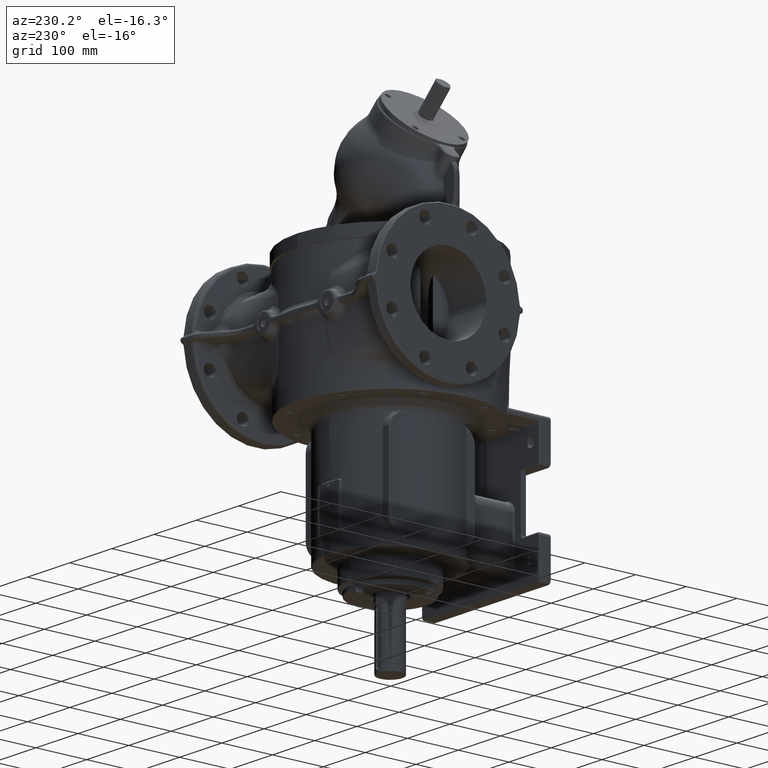
[diagram: clean part render]
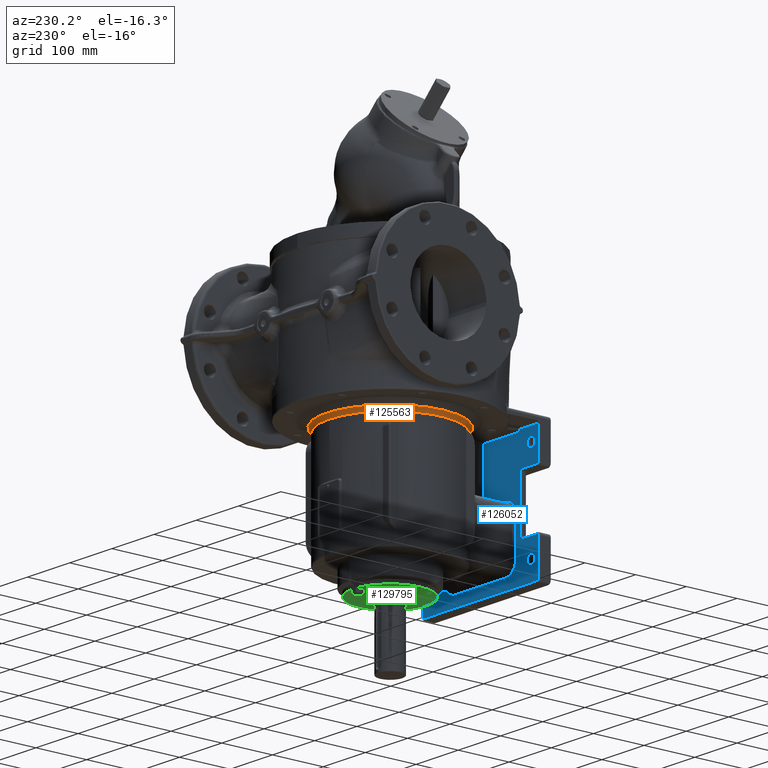
[diagram: same view with three faces highlighted in distinct colors, each labeled with its STEP entity id]
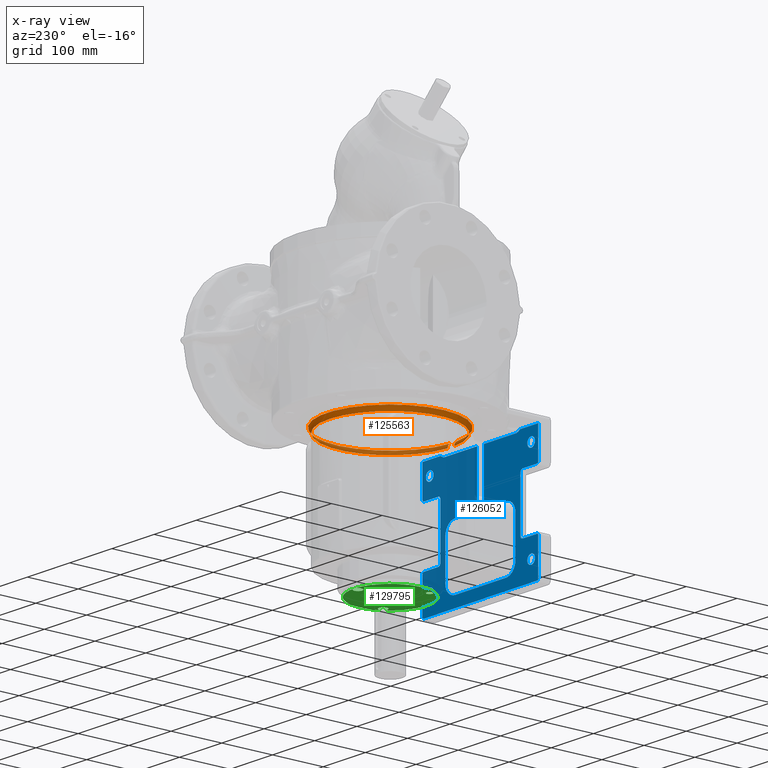
[diagram: x-ray of the same camera — body ghosted, the three highlighted faces saturated]
A machine part, auxiliary view with three faces highlighted in distinct colors.
The next image is the same camera in x-ray (body ghosted, the three faces saturated) — at least one of them is partly hidden behind the body in this view.
Their STEP definitions:

[orange] entity #125563 — the highlighted toroidal blend (fillet) surface has major radius 130 mm and minor (blend) radius 10 mm.
#41489=CARTESIAN_POINT('',(7.905138339962E0,-1.237497847212E2,
-2.966025403897E1));
#41518=CARTESIAN_POINT('',(7.804878048862E0,-1.187459138298E2,
-3.832050807569E1));
#41519=CARTESIAN_POINT('',(7.804878047249E0,-1.187459138581E2,
-3.819588889694E1));
#41520=CARTESIAN_POINT('',(7.804974144647E0,-1.187505769993E2,
-3.794664927612E1));
#41521=CARTESIAN_POINT('',(7.805406310083E0,-1.187715515571E2,
-3.757331164305E1));
#41522=CARTESIAN_POINT('',(7.806125704940E0,-1.188064778220E2,
-3.720100824532E1));
#41523=CARTESIAN_POINT('',(7.807130975604E0,-1.188553061686E2,
-3.683027236160E1));
#41524=CARTESIAN_POINT('',(7.808420267389E0,-1.189179699964E2,
-3.646161107183E1));
#41525=CARTESIAN_POINT('',(7.809991182568E0,-1.189943819244E2,
-3.609554345889E1));
#41526=CARTESIAN_POINT('',(7.811840818256E0,-1.190844364563E2,
-3.573257796155E1));
#41527=CARTESIAN_POINT('',(7.813965758346E0,-1.191880087199E2,
-3.537322182887E1));
#41528=CARTESIAN_POINT('',(7.816362091564E0,-1.193049552912E2,
-3.501797625866E1));
#41529=CARTESIAN_POINT('',(7.819025419473E0,-1.194351140829E2,
-3.466733730117E1));
#41530=CARTESIAN_POINT('',(7.821950870715E0,-1.195783046685E2,
-3.432179460794E1));
#41531=CARTESIAN_POINT('',(7.825133114593E0,-1.197343284661E2,
-3.398183095258E1));
#41532=CARTESIAN_POINT('',(7.828566376483E0,-1.199029690035E2,
-3.364792151348E1));
#41533=CARTESIAN_POINT('',(7.832244454624E0,-1.200839922106E2,
-3.332053317775E1));
#41534=CARTESIAN_POINT('',(7.836160744991E0,-1.202771470857E2,
-3.300012334008E1));
#41535=CARTESIAN_POINT('',(7.840308251340E0,-1.204821656113E2,
-3.268714011921E1));
#41536=CARTESIAN_POINT('',(7.844679598522E0,-1.206987628048E2,
-3.238202202349E1));
#41537=CARTESIAN_POINT('',(7.849267060918E0,-1.209266375058E2,
-3.208519662492E1));
#41538=CARTESIAN_POINT('',(7.854062580797E0,-1.211654726468E2,
-3.179708015615E1));
#41539=CARTESIAN_POINT('',(7.859057790814E0,-1.214149357539E2,
-3.151807681562E1));
#41540=CARTESIAN_POINT('',(7.864244034077E0,-1.216746792300E2,
-3.124857834463E1));
#41541=CARTESIAN_POINT('',(7.869612390946E0,-1.219443412708E2,
-3.098896305862E1));
#41542=CARTESIAN_POINT('',(7.875153689429E0,-1.222235450992E2,
-3.073959636805E1));
#41543=CARTESIAN_POINT('',(7.880858557768E0,-1.225119028044E2,
-3.050082754297E1));
#41544=CARTESIAN_POINT('',(7.886717382646E0,-1.228090077085E2,
-3.027299553799E1));
#41545=CARTESIAN_POINT('',(7.892720438242E0,-1.231144527063E2,
-3.005641526664E1));
#41546=CARTESIAN_POINT('',(7.898857859639E0,-1.234277992889E2,
-2.985139982704E1));
#41547=CARTESIAN_POINT('',(7.903032056922E0,-1.236416762904E2,
-2.972262246797E1));
#41548=CARTESIAN_POINT('',(7.905138339962E0,-1.237497847212E2,
-2.966025403897E1));
#41550=CARTESIAN_POINT('',(0.E0,1.E0,-2.966025403784E1));
#41551=DIRECTION('',(0.E0,0.E0,1.E0));
#41552=DIRECTION('',(6.324110671937E-2,-9.979982777645E-1,0.E0));
#41553=AXIS2_PLACEMENT_3D('',#41550,#41551,#41552);
#41555=CARTESIAN_POINT('',(-7.905138339962E0,-1.237497847212E2,
-2.966025403897E1));
#41556=CARTESIAN_POINT('',(-7.903032056921E0,-1.236416762902E2,
-2.972262246805E1));
#41557=CARTESIAN_POINT('',(-7.898857859631E0,-1.234277992885E2,
-2.985139982725E1));
#41558=CARTESIAN_POINT('',(-7.892720438237E0,-1.231144527060E2,
-3.005641526682E1));
#41559=CARTESIAN_POINT('',(-7.886717382641E0,-1.228090077083E2,
-3.027299553815E1));
#41560=CARTESIAN_POINT('',(-7.880858557764E0,-1.225119028041E2,
-3.050082754315E1));
#41561=CARTESIAN_POINT('',(-7.875153689425E0,-1.222235450990E2,
-3.073959636822E1));
#41562=CARTESIAN_POINT('',(-7.869612390942E0,-1.219443412707E2,
-3.098896305880E1));
#41563=CARTESIAN_POINT('',(-7.864244034074E0,-1.216746792298E2,
-3.124857834480E1));
#41564=CARTESIAN_POINT('',(-7.859057790811E0,-1.214149357537E2,
-3.151807681579E1));
#41565=CARTESIAN_POINT('',(-7.854062580795E0,-1.211654726466E2,
-3.179708015632E1));
#41566=CARTESIAN_POINT('',(-7.849267060915E0,-1.209266375057E2,
-3.208519662508E1));
#41567=CARTESIAN_POINT('',(-7.844679598520E0,-1.206987628047E2,
-3.238202202364E1));
#41568=CARTESIAN_POINT('',(-7.840308251338E0,-1.204821656112E2,
-3.268714011935E1));
#41569=CARTESIAN_POINT('',(-7.836160744989E0,-1.202771470856E2,
-3.300012334022E1));
#41570=CARTESIAN_POINT('',(-7.832244454622E0,-1.200839922105E2,
-3.332053317788E1));
#41571=CARTESIAN_POINT('',(-7.828566376482E0,-1.199029690034E2,
-3.364792151361E1));
#41572=CARTESIAN_POINT('',(-7.825133114592E0,-1.197343284660E2,
-3.398183095269E1));
#41573=CARTESIAN_POINT('',(-7.821950870714E0,-1.195783046685E2,
-3.432179460805E1));
#41574=CARTESIAN_POINT('',(-7.819025419473E0,-1.194351140829E2,
-3.466733730127E1));
#41575=CARTESIAN_POINT('',(-7.816362091563E0,-1.193049552912E2,
-3.501797625875E1));
#41576=CARTESIAN_POINT('',(-7.813965758345E0,-1.191880087199E2,
-3.537322182895E1));
#41577=CARTESIAN_POINT('',(-7.811840818256E0,-1.190844364562E2,
-3.573257796161E1));
#41578=CARTESIAN_POINT('',(-7.809991182567E0,-1.189943819244E2,
-3.609554345894E1));
#41579=CARTESIAN_POINT('',(-7.808420267389E0,-1.189179699963E2,
-3.646161107187E1));
#41580=CARTESIAN_POINT('',(-7.807130975604E0,-1.188553061686E2,
-3.683027236162E1));
#41581=CARTESIAN_POINT('',(-7.806125704940E0,-1.188064778220E2,
-3.720100824534E1));
#41582=CARTESIAN_POINT('',(-7.805406310083E0,-1.187715515571E2,
-3.757331164304E1));
#41583=CARTESIAN_POINT('',(-7.804974144647E0,-1.187505769993E2,
-3.794664927610E1));
#41584=CARTESIAN_POINT('',(-7.804878047249E0,-1.187459138581E2,
-3.819588889694E1));
#41585=CARTESIAN_POINT('',(-7.804878048862E0,-1.187459138298E2,
-3.832050807569E1));
#42973=CARTESIAN_POINT('',(0.E0,1.E0,-3.832050807569E1));
#42974=DIRECTION('',(0.E0,0.E0,-1.E0));
#42975=DIRECTION('',(0.E0,1.E0,0.E0));
#42976=AXIS2_PLACEMENT_3D('',#42973,#42974,#42975);
#43351=CARTESIAN_POINT('',(0.E0,1.E0,-3.832050807569E1));
#43352=DIRECTION('',(0.E0,0.E0,1.E0));
#43353=DIRECTION('',(0.E0,1.E0,0.E0));
#43354=AXIS2_PLACEMENT_3D('',#43351,#43352,#43353);
#65960=VERTEX_POINT('',#41489);
#65963=VERTEX_POINT('',#41518);
#65965=VERTEX_POINT('',#41555);
#65966=VERTEX_POINT('',#41585);
#66216=CARTESIAN_POINT('',(0.E0,1.21E2,-3.832050807569E1));
#66217=VERTEX_POINT('',#66216);
#125548=CARTESIAN_POINT('',(0.E0,1.E0,-3.832050807569E1));
#125549=DIRECTION('',(0.E0,0.E0,-1.E0));
#125550=DIRECTION('',(0.E0,1.E0,0.E0));
#125551=AXIS2_PLACEMENT_3D('',#125548,#125549,#125550);
#125552=TOROIDAL_SURFACE('',#125551,1.3E2,1.E1);
#125553=ORIENTED_EDGE('',*,*,#125538,.T.);
#125554=ORIENTED_EDGE('',*,*,#125358,.T.);
#125556=ORIENTED_EDGE('',*,*,#125555,.T.);
#125558=ORIENTED_EDGE('',*,*,#125557,.F.);
#125560=ORIENTED_EDGE('',*,*,#125559,.T.);
#125561=EDGE_LOOP('',(#125553,#125554,#125556,#125558,#125560));
#125562=FACE_OUTER_BOUND('',#125561,.F.);
#125563=ADVANCED_FACE('',(#125562),#125552,.F.);
#41549=B_SPLINE_CURVE_WITH_KNOTS('',3,(#41518,#41519,#41520,#41521,#41522,
#41523,#41524,#41525,#41526,#41527,#41528,#41529,#41530,#41531,#41532,#41533,
#41534,#41535,#41536,#41537,#41538,#41539,#41540,#41541,#41542,#41543,#41544,
#41545,#41546,#41547,#41548),.UNSPECIFIED.,.F.,.F.,(4,1,1,1,1,1,1,1,1,1,1,1,1,1,
1,1,1,1,1,1,1,1,1,1,1,1,1,1,4),(0.E0,3.571428571429E-2,7.142857142857E-2,
1.071428571429E-1,1.428571428571E-1,1.785714285714E-1,2.142857142857E-1,2.5E-1,
2.857142857143E-1,3.214285714286E-1,3.571428571429E-1,3.928571428571E-1,
4.285714285714E-1,4.642857142857E-1,5.E-1,5.357142857143E-1,5.714285714286E-1,
6.071428571429E-1,6.428571428571E-1,6.785714285714E-1,7.142857142857E-1,7.5E-1,
7.857142857143E-1,8.214285714286E-1,8.571428571429E-1,8.928571428571E-1,
9.285714285714E-1,9.642857142857E-1,1.E0),.UNSPECIFIED.);
#41554=CIRCLE('',#41553,1.25E2);
#41586=B_SPLINE_CURVE_WITH_KNOTS('',3,(#41555,#41556,#41557,#41558,#41559,
#41560,#41561,#41562,#41563,#41564,#41565,#41566,#41567,#41568,#41569,#41570,
#41571,#41572,#41573,#41574,#41575,#41576,#41577,#41578,#41579,#41580,#41581,
#41582,#41583,#41584,#41585),.UNSPECIFIED.,.F.,.F.,(4,1,1,1,1,1,1,1,1,1,1,1,1,1,
1,1,1,1,1,1,1,1,1,1,1,1,1,1,4),(0.E0,3.571428571429E-2,7.142857142857E-2,
1.071428571429E-1,1.428571428571E-1,1.785714285714E-1,2.142857142857E-1,2.5E-1,
2.857142857143E-1,3.214285714286E-1,3.571428571429E-1,3.928571428571E-1,
4.285714285714E-1,4.642857142857E-1,5.E-1,5.357142857143E-1,5.714285714286E-1,
6.071428571429E-1,6.428571428571E-1,6.785714285714E-1,7.142857142857E-1,7.5E-1,
7.857142857143E-1,8.214285714286E-1,8.571428571429E-1,8.928571428571E-1,
9.285714285714E-1,9.642857142857E-1,1.E0),.UNSPECIFIED.);
#42977=CIRCLE('',#42976,1.2E2);
#43355=CIRCLE('',#43354,1.2E2);
#125358=EDGE_CURVE('',#65960,#65965,#41554,.T.);
#125538=EDGE_CURVE('',#65963,#65960,#41549,.T.);
#125555=EDGE_CURVE('',#65965,#65966,#41586,.T.);
#125557=EDGE_CURVE('',#66217,#65966,#43355,.T.);
#125559=EDGE_CURVE('',#66217,#65963,#42977,.T.);

[blue] entity #126052 — the highlighted planar face has unit normal (0, -1, 0).
#41774=DIRECTION('',(-1.E0,-2.991250063592E-10,-3.112637636795E-8));
#41775=VECTOR('',#41774,4.289970117279E1);
#41776=CARTESIAN_POINT('',(-9.410029882721E1,-1.769999999872E2,
-1.989999866469E1));
#41777=LINE('',#41776,#41775);
#41778=DIRECTION('',(0.E0,0.E0,1.E0));
#41779=VECTOR('',#41778,6.01E1);
#41780=CARTESIAN_POINT('',(-1.37E2,-1.77E2,-8.E1));
#41781=LINE('',#41780,#41779);
#41782=CARTESIAN_POINT('',(-1.34E2,-1.77E2,-8.E1));
#41783=DIRECTION('',(0.E0,1.E0,0.E0));
#41784=DIRECTION('',(0.E0,0.E0,-1.E0));
#41785=AXIS2_PLACEMENT_3D('',#41782,#41783,#41784);
#41787=DIRECTION('',(-1.E0,0.E0,0.E0));
#41788=VECTOR('',#41787,3.35E1);
#41789=CARTESIAN_POINT('',(-1.005E2,-1.77E2,-8.3E1));
#41790=LINE('',#41789,#41788);
#41791=CARTESIAN_POINT('',(-1.005E2,-1.77E2,-8.9E1));
#41792=DIRECTION('',(0.E0,-1.E0,0.E0));
#41793=DIRECTION('',(1.E0,0.E0,0.E0));
#41794=AXIS2_PLACEMENT_3D('',#41791,#41792,#41793);
#41796=DIRECTION('',(0.E0,0.E0,1.E0));
#41797=VECTOR('',#41796,9.9E1);
#41798=CARTESIAN_POINT('',(-9.45E1,-1.77E2,-1.88E2));
#41799=LINE('',#41798,#41797);
#41800=CARTESIAN_POINT('',(-1.005E2,-1.77E2,-1.88E2));
#41801=DIRECTION('',(0.E0,-1.E0,0.E0));
#41802=DIRECTION('',(1.113183619357E-13,0.E0,-1.E0));
#41803=AXIS2_PLACEMENT_3D('',#41800,#41801,#41802);
#41805=DIRECTION('',(1.E0,0.E0,0.E0));
#41806=VECTOR('',#41805,3.35E1);
#41807=CARTESIAN_POINT('',(-1.34E2,-1.77E2,-1.94E2));
#41808=LINE('',#41807,#41806);
#41809=CARTESIAN_POINT('',(-1.34E2,-1.77E2,-1.97E2));
#41810=DIRECTION('',(0.E0,1.E0,0.E0));
#41811=DIRECTION('',(-1.E0,0.E0,0.E0));
#41812=AXIS2_PLACEMENT_3D('',#41809,#41810,#41811);
#41814=DIRECTION('',(0.E0,0.E0,1.E0));
#41815=VECTOR('',#41814,6.8E1);
#41816=CARTESIAN_POINT('',(-1.37E2,-1.77E2,-2.65E2));
#41817=LINE('',#41816,#41815);
#41818=CARTESIAN_POINT('',(-1.34E2,-1.77E2,-2.65E2));
#41819=DIRECTION('',(0.E0,1.E0,0.E0));
#41820=DIRECTION('',(9.473903143468E-14,0.E0,-1.E0));
#41821=AXIS2_PLACEMENT_3D('',#41818,#41819,#41820);
#41823=DIRECTION('',(-1.E0,0.E0,0.E0));
#41824=VECTOR('',#41823,2.68E2);
#41825=CARTESIAN_POINT('',(1.34E2,-1.77E2,-2.68E2));
#41826=LINE('',#41825,#41824);
#41827=CARTESIAN_POINT('',(1.34E2,-1.77E2,-2.65E2));
#41828=DIRECTION('',(0.E0,1.E0,0.E0));
#41829=DIRECTION('',(1.E0,0.E0,0.E0));
#41830=AXIS2_PLACEMENT_3D('',#41827,#41828,#41829);
#41832=DIRECTION('',(0.E0,0.E0,-1.E0));
#41833=VECTOR('',#41832,6.8E1);
#41834=CARTESIAN_POINT('',(1.37E2,-1.77E2,-1.97E2));
#41835=LINE('',#41834,#41833);
#41836=CARTESIAN_POINT('',(1.34E2,-1.77E2,-1.97E2));
#41837=DIRECTION('',(0.E0,1.E0,0.E0));
#41838=DIRECTION('',(0.E0,0.E0,1.E0));
#41839=AXIS2_PLACEMENT_3D('',#41836,#41837,#41838);
#41841=DIRECTION('',(1.E0,0.E0,0.E0));
#41842=VECTOR('',#41841,3.35E1);
#41843=CARTESIAN_POINT('',(1.005E2,-1.77E2,-1.94E2));
#41844=LINE('',#41843,#41842);
#41845=CARTESIAN_POINT('',(1.005E2,-1.77E2,-1.88E2));
#41846=DIRECTION('',(0.E0,-1.E0,0.E0));
#41847=DIRECTION('',(-1.E0,0.E0,0.E0));
#41848=AXIS2_PLACEMENT_3D('',#41845,#41846,#41847);
#41850=DIRECTION('',(0.E0,0.E0,-1.E0));
#41851=VECTOR('',#41850,9.9E1);
#41852=CARTESIAN_POINT('',(9.45E1,-1.77E2,-8.9E1));
#41853=LINE('',#41852,#41851);
#41854=CARTESIAN_POINT('',(1.005E2,-1.77E2,-8.9E1));
#41855=DIRECTION('',(0.E0,-1.E0,0.E0));
#41856=DIRECTION('',(0.E0,0.E0,1.E0));
#41857=AXIS2_PLACEMENT_3D('',#41854,#41855,#41856);
#41859=DIRECTION('',(-1.E0,0.E0,0.E0));
#41860=VECTOR('',#41859,3.35E1);
#41861=CARTESIAN_POINT('',(1.34E2,-1.77E2,-8.3E1));
#41862=LINE('',#41861,#41860);
#41863=CARTESIAN_POINT('',(1.34E2,-1.77E2,-8.E1));
#41864=DIRECTION('',(0.E0,1.E0,0.E0));
#41865=DIRECTION('',(1.E0,0.E0,0.E0));
#41866=AXIS2_PLACEMENT_3D('',#41863,#41864,#41865);
#41868=DIRECTION('',(0.E0,0.E0,-1.E0));
#41869=VECTOR('',#41868,6.01E1);
#41870=CARTESIAN_POINT('',(1.37E2,-1.77E2,-1.99E1));
#41871=LINE('',#41870,#41869);
#41872=DIRECTION('',(-1.E0,5.205621506972E-10,4.516596256613E-8));
#41873=VECTOR('',#41872,4.289970035489E1);
#41874=CARTESIAN_POINT('',(1.37E2,-1.77E2,-1.99E1));
#41875=LINE('',#41874,#41873);
#41876=CARTESIAN_POINT('',(8.447797676154E1,-1.77E2,-2.4E1));
#41877=CARTESIAN_POINT('',(8.459356900944E1,-1.769999999942E2,
-2.399999996598E1));
#41878=CARTESIAN_POINT('',(8.482751657636E1,-1.770000000027E2,
-2.399572455526E1));
#41879=CARTESIAN_POINT('',(8.518668662637E1,-1.769999999993E2,
-2.397595937674E1));
#41880=CARTESIAN_POINT('',(8.555422746535E1,-1.770000000002E2,
-2.394228308981E1));
#41881=CARTESIAN_POINT('',(8.593031030084E1,-1.769999999999E2,
-2.389408988914E1));
#41882=CARTESIAN_POINT('',(8.631517389296E1,-1.77E2,-2.383071726788E1));
#41883=CARTESIAN_POINT('',(8.670915769131E1,-1.77E2,-2.375142722918E1));
#41884=CARTESIAN_POINT('',(8.711268206095E1,-1.77E2,-2.365539472172E1));
#41885=CARTESIAN_POINT('',(8.752629096322E1,-1.77E2,-2.354168337421E1));
#41886=CARTESIAN_POINT('',(8.795068490922E1,-1.77E2,-2.340921520407E1));
#41887=CARTESIAN_POINT('',(8.838677629882E1,-1.77E2,-2.325672623687E1));
#41888=CARTESIAN_POINT('',(8.883574489934E1,-1.77E2,-2.308271134927E1));
#41889=CARTESIAN_POINT('',(8.929913394478E1,-1.77E2,-2.288534136160E1));
#41890=CARTESIAN_POINT('',(8.977898577496E1,-1.769999999999E2,
-2.266234315924E1));
#41891=CARTESIAN_POINT('',(9.027805732905E1,-1.770000000002E2,
-2.241081348653E1));
#41892=CARTESIAN_POINT('',(9.080015004072E1,-1.769999999992E2,
-2.212692965634E1));
#41893=CARTESIAN_POINT('',(9.135071981745E1,-1.770000000032E2,
-2.180543584715E1));
#41894=CARTESIAN_POINT('',(9.193785915059E1,-1.769999999882E2,
-2.143877584934E1));
#41895=CARTESIAN_POINT('',(9.257464071287E1,-1.770000000441E2,
-2.101518781047E1));
#41896=CARTESIAN_POINT('',(9.328415591750E1,-1.769999998355E2,
-2.051431422238E1));
#41897=CARTESIAN_POINT('',(9.381897157042E1,-1.770000003544E2,
-2.011523890847E1));
#41898=CARTESIAN_POINT('',(9.410029964511E1,-1.769999999777E2,
-1.989999806239E1));
#41900=DIRECTION('',(1.E0,0.E0,0.E0));
#41901=VECTOR('',#41900,7.647797676154E1);
#41902=CARTESIAN_POINT('',(8.E0,-1.77E2,-2.4E1));
#41903=LINE('',#41902,#41901);
#41904=DIRECTION('',(0.E0,0.E0,-1.E0));
#41905=VECTOR('',#41904,1.02E2);
#41906=CARTESIAN_POINT('',(8.E0,-1.77E2,-2.4E1));
#41907=LINE('',#41906,#41905);
#41908=DIRECTION('',(-1.E0,0.E0,0.E0));
#41909=VECTOR('',#41908,5.2E1);
#41910=CARTESIAN_POINT('',(6.E1,-1.77E2,-1.26E2));
#41911=LINE('',#41910,#41909);
#41912=CARTESIAN_POINT('',(6.E1,-1.77E2,-1.49E2));
#41913=DIRECTION('',(0.E0,-1.E0,0.E0));
#41914=DIRECTION('',(1.E0,0.E0,0.E0));
#41915=AXIS2_PLACEMENT_3D('',#41912,#41913,#41914);
#41917=DIRECTION('',(0.E0,0.E0,1.E0));
#41918=VECTOR('',#41917,7.5E1);
#41919=CARTESIAN_POINT('',(8.3E1,-1.77E2,-2.24E2));
#41920=LINE('',#41919,#41918);
#41921=CARTESIAN_POINT('',(6.E1,-1.77E2,-2.24E2));
#41922=DIRECTION('',(0.E0,-1.E0,0.E0));
#41923=DIRECTION('',(0.E0,0.E0,-1.E0));
#41924=AXIS2_PLACEMENT_3D('',#41921,#41922,#41923);
#41926=DIRECTION('',(1.E0,0.E0,0.E0));
#41927=VECTOR('',#41926,1.2E2);
#41928=CARTESIAN_POINT('',(-6.E1,-1.77E2,-2.47E2));
#41929=LINE('',#41928,#41927);
#41930=CARTESIAN_POINT('',(-6.E1,-1.77E2,-2.24E2));
#41931=DIRECTION('',(0.E0,-1.E0,0.E0));
#41932=DIRECTION('',(-1.E0,0.E0,0.E0));
#41933=AXIS2_PLACEMENT_3D('',#41930,#41931,#41932);
#41935=DIRECTION('',(0.E0,0.E0,-1.E0));
#41936=VECTOR('',#41935,7.5E1);
#41937=CARTESIAN_POINT('',(-8.3E1,-1.77E2,-1.49E2));
#41938=LINE('',#41937,#41936);
#41939=CARTESIAN_POINT('',(-6.E1,-1.77E2,-1.49E2));
#41940=DIRECTION('',(0.E0,-1.E0,0.E0));
#41941=DIRECTION('',(0.E0,0.E0,1.E0));
#41942=AXIS2_PLACEMENT_3D('',#41939,#41940,#41941);
#41944=DIRECTION('',(-1.E0,0.E0,0.E0));
#41945=VECTOR('',#41944,5.2E1);
#41946=CARTESIAN_POINT('',(-8.E0,-1.77E2,-1.26E2));
#41947=LINE('',#41946,#41945);
#41948=DIRECTION('',(0.E0,0.E0,1.E0));
#41949=VECTOR('',#41948,1.02E2);
#41950=CARTESIAN_POINT('',(-8.E0,-1.77E2,-1.26E2));
#41951=LINE('',#41950,#41949);
#41952=DIRECTION('',(1.E0,0.E0,0.E0));
#41953=VECTOR('',#41952,7.647797676154E1);
#41954=CARTESIAN_POINT('',(-8.447797676154E1,-1.77E2,-2.4E1));
#41955=LINE('',#41954,#41953);
#41956=CARTESIAN_POINT('',(-9.410029882721E1,-1.769999999872E2,
-1.989999866469E1));
#41957=CARTESIAN_POINT('',(-9.381892668916E1,-1.770000002469E2,
-2.011527342157E1));
#41958=CARTESIAN_POINT('',(-9.328402695202E1,-1.769999998854E2,
-2.051441171004E1));
#41959=CARTESIAN_POINT('',(-9.257422443147E1,-1.770000000307E2,
-2.101547548573E1));
#41960=CARTESIAN_POINT('',(-9.193749821660E1,-1.769999999918E2,
-2.143900740406E1));
#41961=CARTESIAN_POINT('',(-9.135033825618E1,-1.770000000022E2,
-2.180566649174E1));
#41962=CARTESIAN_POINT('',(-9.079978062292E1,-1.769999999994E2,
-2.212713737379E1));
#41963=CARTESIAN_POINT('',(-9.027769734135E1,-1.770000000002E2,
-2.241100163027E1));
#41964=CARTESIAN_POINT('',(-8.977864733433E1,-1.77E2,-2.266250652215E1));
#41965=CARTESIAN_POINT('',(-8.929881875707E1,-1.77E2,-2.288548120685E1));
#41966=CARTESIAN_POINT('',(-8.883545697463E1,-1.77E2,-2.308282795084E1));
#41967=CARTESIAN_POINT('',(-8.838651714099E1,-1.77E2,-2.325682129505E1));
#41968=CARTESIAN_POINT('',(-8.795045564161E1,-1.77E2,-2.340929062451E1));
#41969=CARTESIAN_POINT('',(-8.752609211504E1,-1.77E2,-2.354174132610E1));
#41970=CARTESIAN_POINT('',(-8.711251353356E1,-1.77E2,-2.365543756713E1));
#41971=CARTESIAN_POINT('',(-8.670901750480E1,-1.77E2,-2.375145768108E1));
#41972=CARTESIAN_POINT('',(-8.631506047266E1,-1.77E2,-2.383073772194E1));
#41973=CARTESIAN_POINT('',(-8.593022193787E1,-1.769999999999E2,
-2.389410253177E1));
#41974=CARTESIAN_POINT('',(-8.555416365198E1,-1.770000000002E2,
-2.394228984335E1));
#41975=CARTESIAN_POINT('',(-8.518664518080E1,-1.769999999993E2,
-2.397596214329E1));
#41976=CARTESIAN_POINT('',(-8.482749723755E1,-1.770000000027E2,
-2.399572502072E1));
#41977=CARTESIAN_POINT('',(-8.459356275639E1,-1.769999999942E2,
-2.399999996684E1));
#41978=CARTESIAN_POINT('',(-8.447797676154E1,-1.77E2,-2.4E1));
#41980=CARTESIAN_POINT('',(1.2E2,-1.77E2,-2.31E2));
#41981=DIRECTION('',(0.E0,1.E0,0.E0));
#41982=DIRECTION('',(1.E0,0.E0,0.E0));
#41983=AXIS2_PLACEMENT_3D('',#41980,#41981,#41982);
#41985=CARTESIAN_POINT('',(1.2E2,-1.77E2,-2.31E2));
#41986=DIRECTION('',(0.E0,1.E0,0.E0));
#41987=DIRECTION('',(-1.E0,0.E0,0.E0));
#41988=AXIS2_PLACEMENT_3D('',#41985,#41986,#41987);
#41990=CARTESIAN_POINT('',(1.2E2,-1.77E2,-4.6E1));
#41991=DIRECTION('',(0.E0,1.E0,0.E0));
#41992=DIRECTION('',(1.E0,0.E0,0.E0));
#41993=AXIS2_PLACEMENT_3D('',#41990,#41991,#41992);
#41995=CARTESIAN_POINT('',(1.2E2,-1.77E2,-4.6E1));
#41996=DIRECTION('',(0.E0,1.E0,0.E0));
#41997=DIRECTION('',(-1.E0,0.E0,0.E0));
#41998=AXIS2_PLACEMENT_3D('',#41995,#41996,#41997);
#42000=CARTESIAN_POINT('',(-1.2E2,-1.77E2,-2.31E2));
#42001=DIRECTION('',(0.E0,1.E0,0.E0));
#42002=DIRECTION('',(1.E0,0.E0,0.E0));
#42003=AXIS2_PLACEMENT_3D('',#42000,#42001,#42002);
#42005=CARTESIAN_POINT('',(-1.2E2,-1.77E2,-2.31E2));
#42006=DIRECTION('',(0.E0,1.E0,0.E0));
#42007=DIRECTION('',(-1.E0,0.E0,0.E0));
#42008=AXIS2_PLACEMENT_3D('',#42005,#42006,#42007);
#42010=CARTESIAN_POINT('',(-1.2E2,-1.77E2,-4.6E1));
#42011=DIRECTION('',(0.E0,1.E0,0.E0));
#42012=DIRECTION('',(1.E0,0.E0,0.E0));
#42013=AXIS2_PLACEMENT_3D('',#42010,#42011,#42012);
#42015=CARTESIAN_POINT('',(-1.2E2,-1.77E2,-4.6E1));
#42016=DIRECTION('',(0.E0,1.E0,0.E0));
#42017=DIRECTION('',(-1.E0,0.E0,0.E0));
#42018=AXIS2_PLACEMENT_3D('',#42015,#42016,#42017);
#66037=CARTESIAN_POINT('',(1.29E2,-1.77E2,-2.31E2));
#66038=VERTEX_POINT('',#66037);
#66039=CARTESIAN_POINT('',(1.11E2,-1.77E2,-2.31E2));
#66040=VERTEX_POINT('',#66039);
#66045=CARTESIAN_POINT('',(1.29E2,-1.77E2,-4.6E1));
#66046=VERTEX_POINT('',#66045);
#66047=CARTESIAN_POINT('',(1.11E2,-1.77E2,-4.6E1));
#66048=VERTEX_POINT('',#66047);
#66053=CARTESIAN_POINT('',(-1.11E2,-1.77E2,-2.31E2));
#66054=VERTEX_POINT('',#66053);
#66055=CARTESIAN_POINT('',(-1.29E2,-1.77E2,-2.31E2));
#66056=VERTEX_POINT('',#66055);
#66061=CARTESIAN_POINT('',(-1.11E2,-1.77E2,-4.6E1));
#66062=VERTEX_POINT('',#66061);
#66063=CARTESIAN_POINT('',(-1.29E2,-1.77E2,-4.6E1));
#66064=VERTEX_POINT('',#66063);
#66197=CARTESIAN_POINT('',(8.E0,-1.77E2,-2.4E1));
#66198=VERTEX_POINT('',#66197);
#66199=CARTESIAN_POINT('',(8.E0,-1.77E2,-1.26E2));
#66200=VERTEX_POINT('',#66199);
#66203=CARTESIAN_POINT('',(-8.E0,-1.77E2,-1.26E2));
#66204=CARTESIAN_POINT('',(-8.E0,-1.77E2,-2.4E1));
#66205=VERTEX_POINT('',#66203);
#66206=VERTEX_POINT('',#66204);
#66220=CARTESIAN_POINT('',(-8.447797676154E1,-1.77E2,-2.4E1));
#66221=VERTEX_POINT('',#66220);
#66224=CARTESIAN_POINT('',(8.447797676154E1,-1.77E2,-2.4E1));
#66225=VERTEX_POINT('',#66224);
#66226=CARTESIAN_POINT('',(-1.005E2,-1.77E2,-8.3E1));
#66227=CARTESIAN_POINT('',(-1.34E2,-1.77E2,-8.3E1));
#66228=VERTEX_POINT('',#66226);
#66229=VERTEX_POINT('',#66227);
#66234=CARTESIAN_POINT('',(1.37E2,-1.77E2,-8.E1));
#66235=CARTESIAN_POINT('',(1.34E2,-1.77E2,-8.3E1));
#66236=VERTEX_POINT('',#66234);
#66237=VERTEX_POINT('',#66235);
#66242=CARTESIAN_POINT('',(-1.37E2,-1.77E2,-8.E1));
#66243=VERTEX_POINT('',#66242);
#66246=CARTESIAN_POINT('',(1.005E2,-1.77E2,-8.3E1));
#66247=VERTEX_POINT('',#66246);
#66254=CARTESIAN_POINT('',(1.005E2,-1.77E2,-1.94E2));
#66255=CARTESIAN_POINT('',(1.34E2,-1.77E2,-1.94E2));
#66256=VERTEX_POINT('',#66254);
#66257=VERTEX_POINT('',#66255);
#66258=CARTESIAN_POINT('',(-1.37E2,-1.77E2,-1.97E2));
#66259=CARTESIAN_POINT('',(-1.34E2,-1.77E2,-1.94E2));
#66260=VERTEX_POINT('',#66258);
#66261=VERTEX_POINT('',#66259);
#66266=CARTESIAN_POINT('',(-1.37E2,-1.77E2,-2.65E2));
#66267=VERTEX_POINT('',#66266);
#66270=CARTESIAN_POINT('',(-1.34E2,-1.77E2,-2.68E2));
#66271=VERTEX_POINT('',#66270);
#66274=CARTESIAN_POINT('',(1.34E2,-1.77E2,-2.68E2));
#66275=VERTEX_POINT('',#66274);
#66278=CARTESIAN_POINT('',(1.37E2,-1.77E2,-2.65E2));
#66279=VERTEX_POINT('',#66278);
#66282=CARTESIAN_POINT('',(1.37E2,-1.77E2,-1.97E2));
#66283=VERTEX_POINT('',#66282);
#66286=CARTESIAN_POINT('',(-1.005E2,-1.77E2,-1.94E2));
#66287=VERTEX_POINT('',#66286);
#66306=CARTESIAN_POINT('',(-9.45E1,-1.77E2,-8.9E1));
#66307=VERTEX_POINT('',#66306);
#66310=CARTESIAN_POINT('',(-9.45E1,-1.77E2,-1.88E2));
#66311=VERTEX_POINT('',#66310);
#66314=CARTESIAN_POINT('',(9.45E1,-1.77E2,-1.88E2));
#66315=VERTEX_POINT('',#66314);
#66318=CARTESIAN_POINT('',(9.45E1,-1.77E2,-8.9E1));
#66319=VERTEX_POINT('',#66318);
#66334=CARTESIAN_POINT('',(8.3E1,-1.77E2,-1.49E2));
#66335=CARTESIAN_POINT('',(6.E1,-1.77E2,-1.26E2));
#66336=VERTEX_POINT('',#66334);
#66337=VERTEX_POINT('',#66335);
#66340=CARTESIAN_POINT('',(8.3E1,-1.77E2,-2.24E2));
#66341=VERTEX_POINT('',#66340);
#66344=CARTESIAN_POINT('',(6.E1,-1.77E2,-2.47E2));
#66345=VERTEX_POINT('',#66344);
#66348=CARTESIAN_POINT('',(-6.E1,-1.77E2,-2.47E2));
#66349=VERTEX_POINT('',#66348);
#66352=CARTESIAN_POINT('',(-8.3E1,-1.77E2,-2.24E2));
#66353=VERTEX_POINT('',#66352);
#66356=CARTESIAN_POINT('',(-8.3E1,-1.77E2,-1.49E2));
#66357=VERTEX_POINT('',#66356);
#66360=CARTESIAN_POINT('',(-6.E1,-1.77E2,-1.26E2));
#66361=VERTEX_POINT('',#66360);
#66370=CARTESIAN_POINT('',(-9.410029882721E1,-1.769999999872E2,
-1.989999866469E1));
#66371=CARTESIAN_POINT('',(-1.37E2,-1.77E2,-1.99E1));
#66372=VERTEX_POINT('',#66370);
#66373=VERTEX_POINT('',#66371);
#66417=CARTESIAN_POINT('',(9.410030259756E1,-1.769999999295E2,
-1.989999580726E1));
#66418=VERTEX_POINT('',#66417);
#66421=CARTESIAN_POINT('',(1.37E2,-1.77E2,-1.99E1));
#66422=VERTEX_POINT('',#66421);
#125948=CARTESIAN_POINT('',(0.E0,-1.77E2,-2.88E2));
#125949=DIRECTION('',(0.E0,-1.E0,0.E0));
#125950=DIRECTION('',(0.E0,0.E0,1.E0));
#125951=AXIS2_PLACEMENT_3D('',#125948,#125949,#125950);
#125952=PLANE('',#125951);
#125953=ORIENTED_EDGE('',*,*,#125939,.T.);
#125955=ORIENTED_EDGE('',*,*,#125954,.F.);
#125957=ORIENTED_EDGE('',*,*,#125956,.F.);
#125959=ORIENTED_EDGE('',*,*,#125958,.F.);
#125961=ORIENTED_EDGE('',*,*,#125960,.F.);
#125963=ORIENTED_EDGE('',*,*,#125962,.F.);
#125965=ORIENTED_EDGE('',*,*,#125964,.F.);
#125967=ORIENTED_EDGE('',*,*,#125966,.F.);
#125969=ORIENTED_EDGE('',*,*,#125968,.F.);
#125971=ORIENTED_EDGE('',*,*,#125970,.F.);
#125973=ORIENTED_EDGE('',*,*,#125972,.F.);
#125975=ORIENTED_EDGE('',*,*,#125974,.F.);
#125977=ORIENTED_EDGE('',*,*,#125976,.F.);
#125979=ORIENTED_EDGE('',*,*,#125978,.F.);
#125981=ORIENTED_EDGE('',*,*,#125980,.F.);
#125983=ORIENTED_EDGE('',*,*,#125982,.F.);
#125985=ORIENTED_EDGE('',*,*,#125984,.F.);
#125987=ORIENTED_EDGE('',*,*,#125986,.F.);
#125989=ORIENTED_EDGE('',*,*,#125988,.F.);
#125991=ORIENTED_EDGE('',*,*,#125990,.F.);
#125993=ORIENTED_EDGE('',*,*,#125992,.F.);
#125995=ORIENTED_EDGE('',*,*,#125994,.F.);
#125997=ORIENTED_EDGE('',*,*,#125996,.T.);
#125999=ORIENTED_EDGE('',*,*,#125998,.F.);
#126001=ORIENTED_EDGE('',*,*,#126000,.F.);
#126003=ORIENTED_EDGE('',*,*,#126002,.T.);
#126005=ORIENTED_EDGE('',*,*,#126004,.F.);
#126007=ORIENTED_EDGE('',*,*,#126006,.F.);
#126009=ORIENTED_EDGE('',*,*,#126008,.F.);
#126011=ORIENTED_EDGE('',*,*,#126010,.F.);
#126013=ORIENTED_EDGE('',*,*,#126012,.F.);
#126015=ORIENTED_EDGE('',*,*,#126014,.F.);
#126017=ORIENTED_EDGE('',*,*,#126016,.F.);
#126019=ORIENTED_EDGE('',*,*,#126018,.F.);
#126021=ORIENTED_EDGE('',*,*,#126020,.F.);
#126023=ORIENTED_EDGE('',*,*,#126022,.T.);
#126024=ORIENTED_EDGE('',*,*,#125761,.F.);
#126025=ORIENTED_EDGE('',*,*,#125873,.F.);
#126026=EDGE_LOOP('',(#125953,#125955,#125957,#125959,#125961,#125963,#125965,
#125967,#125969,#125971,#125973,#125975,#125977,#125979,#125981,#125983,#125985,
#125987,#125989,#125991,#125993,#125995,#125997,#125999,#126001,#126003,#126005,
#126007,#126009,#126011,#126013,#126015,#126017,#126019,#126021,#126023,#126024,
#126025));
#126027=FACE_OUTER_BOUND('',#126026,.F.);
#126029=ORIENTED_EDGE('',*,*,#126028,.T.);
#126031=ORIENTED_EDGE('',*,*,#126030,.T.);
#126032=EDGE_LOOP('',(#126029,#126031));
#126033=FACE_BOUND('',#126032,.F.);
#126035=ORIENTED_EDGE('',*,*,#126034,.T.);
#126037=ORIENTED_EDGE('',*,*,#126036,.T.);
#126038=EDGE_LOOP('',(#126035,#126037));
#126039=FACE_BOUND('',#126038,.F.);
#126041=ORIENTED_EDGE('',*,*,#126040,.T.);
#126043=ORIENTED_EDGE('',*,*,#126042,.T.);
#126044=EDGE_LOOP('',(#126041,#126043));
#126045=FACE_BOUND('',#126044,.F.);
#126047=ORIENTED_EDGE('',*,*,#126046,.T.);
#126049=ORIENTED_EDGE('',*,*,#126048,.T.);
#126050=EDGE_LOOP('',(#126047,#126049));
#126051=FACE_BOUND('',#126050,.F.);
#126052=ADVANCED_FACE('',(#126027,#126033,#126039,#126045,#126051),#125952,.F.);
#41786=CIRCLE('',#41785,3.E0);
#41795=CIRCLE('',#41794,6.E0);
#41804=CIRCLE('',#41803,6.E0);
#41813=CIRCLE('',#41812,3.E0);
#41822=CIRCLE('',#41821,3.E0);
#41831=CIRCLE('',#41830,3.E0);
#41840=CIRCLE('',#41839,3.E0);
#41849=CIRCLE('',#41848,6.E0);
#41858=CIRCLE('',#41857,6.E0);
#41867=CIRCLE('',#41866,3.E0);
#41899=B_SPLINE_CURVE_WITH_KNOTS('',3,(#41876,#41877,#41878,#41879,#41880,
#41881,#41882,#41883,#41884,#41885,#41886,#41887,#41888,#41889,#41890,#41891,
#41892,#41893,#41894,#41895,#41896,#41897,#41898),.UNSPECIFIED.,.F.,.F.,(4,1,1,
1,1,1,1,1,1,1,1,1,1,1,1,1,1,1,1,1,4),(0.E0,5.E-2,1.E-1,1.5E-1,2.E-1,2.5E-1,
3.E-1,3.5E-1,4.E-1,4.5E-1,5.E-1,5.5E-1,6.E-1,6.5E-1,7.E-1,7.5E-1,8.E-1,8.5E-1,
9.E-1,9.5E-1,1.E0),.UNSPECIFIED.);
#41916=CIRCLE('',#41915,2.3E1);
#41925=CIRCLE('',#41924,2.3E1);
#41934=CIRCLE('',#41933,2.3E1);
#41943=CIRCLE('',#41942,2.3E1);
#41979=B_SPLINE_CURVE_WITH_KNOTS('',3,(#41956,#41957,#41958,#41959,#41960,
#41961,#41962,#41963,#41964,#41965,#41966,#41967,#41968,#41969,#41970,#41971,
#41972,#41973,#41974,#41975,#41976,#41977,#41978),.UNSPECIFIED.,.F.,.F.,(4,1,1,
1,1,1,1,1,1,1,1,1,1,1,1,1,1,1,1,1,4),(0.E0,5.E-2,1.E-1,1.5E-1,2.E-1,2.5E-1,
3.E-1,3.5E-1,4.E-1,4.5E-1,5.E-1,5.5E-1,6.E-1,6.5E-1,7.E-1,7.5E-1,8.E-1,8.5E-1,
9.E-1,9.5E-1,1.E0),.UNSPECIFIED.);
#41984=CIRCLE('',#41983,9.E0);
#41989=CIRCLE('',#41988,9.E0);
#41994=CIRCLE('',#41993,9.E0);
#41999=CIRCLE('',#41998,9.E0);
#42004=CIRCLE('',#42003,9.E0);
#42009=CIRCLE('',#42008,9.E0);
#42014=CIRCLE('',#42013,9.E0);
#42019=CIRCLE('',#42018,9.E0);
#125761=EDGE_CURVE('',#66221,#66206,#41955,.T.);
#125873=EDGE_CURVE('',#66372,#66221,#41979,.T.);
#125939=EDGE_CURVE('',#66372,#66373,#41777,.T.);
#125954=EDGE_CURVE('',#66243,#66373,#41781,.T.);
#125956=EDGE_CURVE('',#66229,#66243,#41786,.T.);
#125958=EDGE_CURVE('',#66228,#66229,#41790,.T.);
#125960=EDGE_CURVE('',#66307,#66228,#41795,.T.);
#125962=EDGE_CURVE('',#66311,#66307,#41799,.T.);
#125964=EDGE_CURVE('',#66287,#66311,#41804,.T.);
#125966=EDGE_CURVE('',#66261,#66287,#41808,.T.);
#125968=EDGE_CURVE('',#66260,#66261,#41813,.T.);
#125970=EDGE_CURVE('',#66267,#66260,#41817,.T.);
#125972=EDGE_CURVE('',#66271,#66267,#41822,.T.);
#125974=EDGE_CURVE('',#66275,#66271,#41826,.T.);
#125976=EDGE_CURVE('',#66279,#66275,#41831,.T.);
#125978=EDGE_CURVE('',#66283,#66279,#41835,.T.);
#125980=EDGE_CURVE('',#66257,#66283,#41840,.T.);
#125982=EDGE_CURVE('',#66256,#66257,#41844,.T.);
#125984=EDGE_CURVE('',#66315,#66256,#41849,.T.);
#125986=EDGE_CURVE('',#66319,#66315,#41853,.T.);
#125988=EDGE_CURVE('',#66247,#66319,#41858,.T.);
#125990=EDGE_CURVE('',#66237,#66247,#41862,.T.);
#125992=EDGE_CURVE('',#66236,#66237,#41867,.T.);
#125994=EDGE_CURVE('',#66422,#66236,#41871,.T.);
#125996=EDGE_CURVE('',#66422,#66418,#41875,.T.);
#125998=EDGE_CURVE('',#66225,#66418,#41899,.T.);
#126000=EDGE_CURVE('',#66198,#66225,#41903,.T.);
#126002=EDGE_CURVE('',#66198,#66200,#41907,.T.);
#126004=EDGE_CURVE('',#66337,#66200,#41911,.T.);
#126006=EDGE_CURVE('',#66336,#66337,#41916,.T.);
#126008=EDGE_CURVE('',#66341,#66336,#41920,.T.);
#126010=EDGE_CURVE('',#66345,#66341,#41925,.T.);
#126012=EDGE_CURVE('',#66349,#66345,#41929,.T.);
#126014=EDGE_CURVE('',#66353,#66349,#41934,.T.);
#126016=EDGE_CURVE('',#66357,#66353,#41938,.T.);
#126018=EDGE_CURVE('',#66361,#66357,#41943,.T.);
#126020=EDGE_CURVE('',#66205,#66361,#41947,.T.);
#126022=EDGE_CURVE('',#66205,#66206,#41951,.T.);
#126028=EDGE_CURVE('',#66038,#66040,#41984,.T.);
#126030=EDGE_CURVE('',#66040,#66038,#41989,.T.);
#126034=EDGE_CURVE('',#66046,#66048,#41994,.T.);
#126036=EDGE_CURVE('',#66048,#66046,#41999,.T.);
#126040=EDGE_CURVE('',#66054,#66056,#42004,.T.);
#126042=EDGE_CURVE('',#66056,#66054,#42009,.T.);
#126046=EDGE_CURVE('',#66062,#66064,#42014,.T.);
#126048=EDGE_CURVE('',#66064,#66062,#42019,.T.);

[green] entity #129795 — the highlighted planar face has unit normal (0, 0, 1).
#44799=CARTESIAN_POINT('',(0.E0,1.E0,-2.974E2));
#44800=DIRECTION('',(0.E0,0.E0,-1.E0));
#44801=DIRECTION('',(8.660254037844E-1,-5.E-1,0.E0));
#44802=AXIS2_PLACEMENT_3D('',#44799,#44800,#44801);
#44804=CARTESIAN_POINT('',(0.E0,1.E0,-2.974E2));
#44805=DIRECTION('',(0.E0,0.E0,-1.E0));
#44806=DIRECTION('',(-8.660254037844E-1,5.E-1,0.E0));
#44807=AXIS2_PLACEMENT_3D('',#44804,#44805,#44806);
#44809=CARTESIAN_POINT('',(0.E0,1.E0,-2.974E2));
#44810=DIRECTION('',(0.E0,0.E0,-1.E0));
#44811=DIRECTION('',(8.660254037844E-1,-5.E-1,0.E0));
#44812=AXIS2_PLACEMENT_3D('',#44809,#44810,#44811);
#44814=CARTESIAN_POINT('',(0.E0,1.E0,-2.974E2));
#44815=DIRECTION('',(0.E0,0.E0,-1.E0));
#44816=DIRECTION('',(-8.660254037844E-1,5.E-1,0.E0));
#44817=AXIS2_PLACEMENT_3D('',#44814,#44815,#44816);
#44819=CARTESIAN_POINT('',(-5.499261314031E1,-3.075E1,-2.974E2));
#44820=DIRECTION('',(0.E0,0.E0,-1.E0));
#44821=DIRECTION('',(5.E-1,-8.660254037844E-1,0.E0));
#44822=AXIS2_PLACEMENT_3D('',#44819,#44820,#44821);
#44824=CARTESIAN_POINT('',(-5.499261314031E1,-3.075E1,-2.974E2));
#44825=DIRECTION('',(0.E0,0.E0,-1.E0));
#44826=DIRECTION('',(-5.E-1,8.660254037844E-1,0.E0));
#44827=AXIS2_PLACEMENT_3D('',#44824,#44825,#44826);
#44829=CARTESIAN_POINT('',(5.499261314031E1,-3.075E1,-2.974E2));
#44830=DIRECTION('',(0.E0,0.E0,1.E0));
#44831=DIRECTION('',(0.E0,-1.E0,0.E0));
#44832=AXIS2_PLACEMENT_3D('',#44829,#44830,#44831);
#44834=CARTESIAN_POINT('',(5.499261314031E1,-3.075E1,-2.974E2));
#44835=DIRECTION('',(0.E0,0.E0,1.E0));
#44836=DIRECTION('',(0.E0,1.E0,0.E0));
#44837=AXIS2_PLACEMENT_3D('',#44834,#44835,#44836);
#44839=CARTESIAN_POINT('',(0.E0,6.45E1,-2.974E2));
#44840=DIRECTION('',(0.E0,0.E0,1.E0));
#44841=DIRECTION('',(0.E0,-1.E0,0.E0));
#44842=AXIS2_PLACEMENT_3D('',#44839,#44840,#44841);
#44844=CARTESIAN_POINT('',(0.E0,6.45E1,-2.974E2));
#44845=DIRECTION('',(0.E0,0.E0,1.E0));
#44846=DIRECTION('',(0.E0,1.E0,0.E0));
#44847=AXIS2_PLACEMENT_3D('',#44844,#44845,#44846);
#65747=CARTESIAN_POINT('',(-5.224261314031E1,-3.551313972081E1,-2.974E2));
#65748=CARTESIAN_POINT('',(-5.774261314031E1,-2.598686027919E1,-2.974E2));
#65749=VERTEX_POINT('',#65747);
#65750=VERTEX_POINT('',#65748);
#65779=CARTESIAN_POINT('',(6.235382907248E1,-3.5E1,-2.974E2));
#65780=CARTESIAN_POINT('',(-6.235382907248E1,3.7E1,-2.974E2));
#65781=VERTEX_POINT('',#65779);
#65782=VERTEX_POINT('',#65780);
#65807=CARTESIAN_POINT('',(2.684678751732E1,-1.45E1,-2.974E2));
#65808=CARTESIAN_POINT('',(-2.684678751732E1,1.65E1,-2.974E2));
#65809=VERTEX_POINT('',#65807);
#65810=VERTEX_POINT('',#65808);
#65849=CARTESIAN_POINT('',(5.499261314031E1,-3.885E1,-2.974E2));
#65850=CARTESIAN_POINT('',(5.499261314031E1,-2.265E1,-2.974E2));
#65851=VERTEX_POINT('',#65849);
#65852=VERTEX_POINT('',#65850);
#65895=CARTESIAN_POINT('',(0.E0,5.64E1,-2.974E2));
#65896=CARTESIAN_POINT('',(-5.656198768926E-14,7.26E1,-2.974E2));
#65897=VERTEX_POINT('',#65895);
#65898=VERTEX_POINT('',#65896);
#129761=CARTESIAN_POINT('',(0.E0,1.E0,-2.974E2));
#129762=DIRECTION('',(0.E0,0.E0,1.E0));
#129763=DIRECTION('',(-8.660254037844E-1,5.E-1,0.E0));
#129764=AXIS2_PLACEMENT_3D('',#129761,#129762,#129763);
#129765=PLANE('',#129764);
#129766=ORIENTED_EDGE('',*,*,#129751,.F.);
#129768=ORIENTED_EDGE('',*,*,#129767,.F.);
#129769=EDGE_LOOP('',(#129766,#129768));
#129770=FACE_OUTER_BOUND('',#129769,.F.);
#129772=ORIENTED_EDGE('',*,*,#129771,.T.);
#129774=ORIENTED_EDGE('',*,*,#129773,.T.);
#129775=EDGE_LOOP('',(#129772,#129774));
#129776=FACE_BOUND('',#129775,.F.);
#129778=ORIENTED_EDGE('',*,*,#129777,.T.);
#129780=ORIENTED_EDGE('',*,*,#129779,.T.);
#129781=EDGE_LOOP('',(#129778,#129780));
#129782=FACE_BOUND('',#129781,.F.);
#129784=ORIENTED_EDGE('',*,*,#129783,.F.);
#129786=ORIENTED_EDGE('',*,*,#129785,.F.);
#129787=EDGE_LOOP('',(#129784,#129786));
#129788=FACE_BOUND('',#129787,.F.);
#129790=ORIENTED_EDGE('',*,*,#129789,.F.);
#129792=ORIENTED_EDGE('',*,*,#129791,.F.);
#129793=EDGE_LOOP('',(#129790,#129792));
#129794=FACE_BOUND('',#129793,.F.);
#129795=ADVANCED_FACE('',(#129770,#129776,#129782,#129788,#129794),#129765,.F.);
#44803=CIRCLE('',#44802,7.2E1);
#44808=CIRCLE('',#44807,7.2E1);
#44813=CIRCLE('',#44812,3.1E1);
#44818=CIRCLE('',#44817,3.1E1);
#44823=CIRCLE('',#44822,5.5E0);
#44828=CIRCLE('',#44827,5.5E0);
#44833=CIRCLE('',#44832,8.1E0);
#44838=CIRCLE('',#44837,8.1E0);
#44843=CIRCLE('',#44842,8.1E0);
#44848=CIRCLE('',#44847,8.1E0);
#129751=EDGE_CURVE('',#65781,#65782,#44803,.T.);
#129767=EDGE_CURVE('',#65782,#65781,#44808,.T.);
#129771=EDGE_CURVE('',#65809,#65810,#44813,.T.);
#129773=EDGE_CURVE('',#65810,#65809,#44818,.T.);
#129777=EDGE_CURVE('',#65749,#65750,#44823,.T.);
#129779=EDGE_CURVE('',#65750,#65749,#44828,.T.);
#129783=EDGE_CURVE('',#65851,#65852,#44833,.T.);
#129785=EDGE_CURVE('',#65852,#65851,#44838,.T.);
#129789=EDGE_CURVE('',#65897,#65898,#44843,.T.);
#129791=EDGE_CURVE('',#65898,#65897,#44848,.T.);